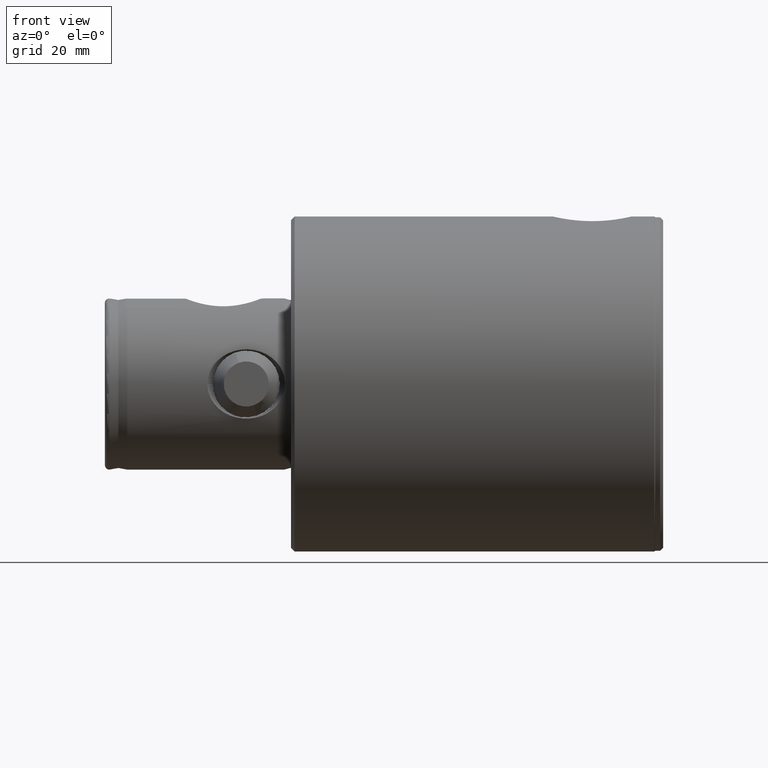
[diagram: clean part render]
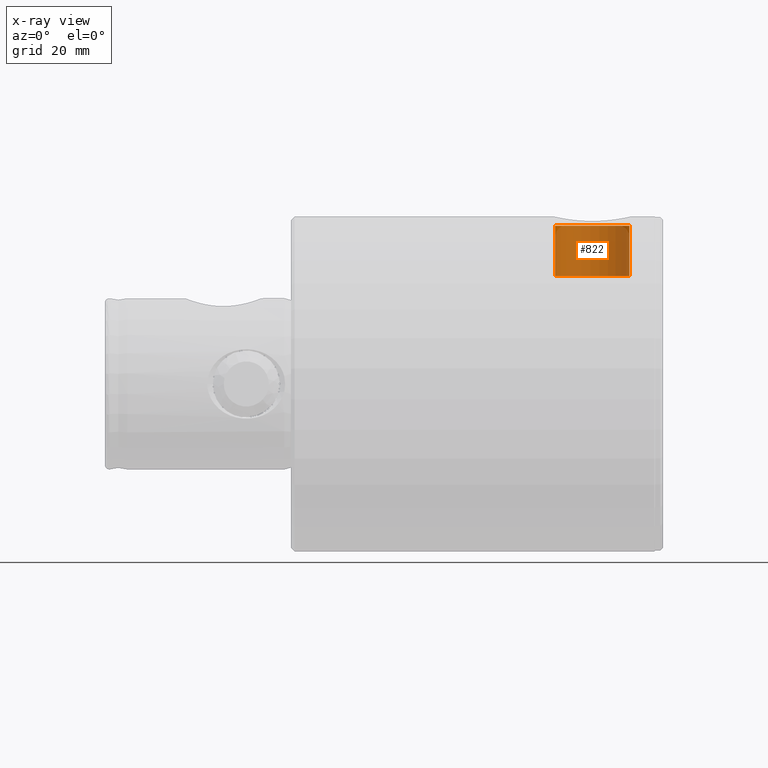
[diagram: x-ray — body ghosted, one internal face saturated and labeled with its STEP entity id]
A machine part, front view, then the same camera in x-ray: the body is ghosted and one INTERNAL B-rep face — a face not visible from any outside direction — is saturated and labeled: STEP entity #822.
In plain terms, the highlighted cylindrical surface (partial cylindrical patch) has radius 10 mm, axis along (0, 0, 1).
Its self-contained STEP definition (entity closure, byte-faithful):
#25 = AXIS2_PLACEMENT_3D ( 'NONE', #3621, #3001, #4039 ) ;
#216 = EDGE_CURVE ( 'NONE', #907, #775, #1763, .T. ) ;
#630 = CARTESIAN_POINT ( 'NONE',  ( 29.00000000000000000, 1.224646799147353100E-015, -10.00000000000000000 ) ) ;
#775 = VERTEX_POINT ( 'NONE', #5056 ) ;
#815 = DIRECTION ( 'NONE',  ( 1.000000000000000000, -0.0000000000000000000, -0.0000000000000000000 ) ) ;
#822 = ADVANCED_FACE ( 'NONE', ( #2659 ), #2600, .T. ) ;
#907 = VERTEX_POINT ( 'NONE', #2969 ) ;
#908 = ORIENTED_EDGE ( 'NONE', *, *, #4320, .F. ) ;
#1064 = EDGE_LOOP ( 'NONE', ( #1156, #3132, #2574, #908 ) ) ;
#1156 = ORIENTED_EDGE ( 'NONE', *, *, #3582, .T. ) ;
#1213 = CARTESIAN_POINT ( 'NONE',  ( 1.000000000000007800, 0.0000000000000000000, 0.0000000000000000000 ) ) ;
#1699 = AXIS2_PLACEMENT_3D ( 'NONE', #1213, #815, #5092 ) ;
#1763 = LINE ( 'NONE', #630, #1818 ) ;
#1782 = CIRCLE ( 'NONE', #1699, 10.00000000000000000 ) ;
#1818 = VECTOR ( 'NONE', #2607, 1000.000000000000000 ) ;
#2066 = VERTEX_POINT ( 'NONE', #2768 ) ;
#2320 = VECTOR ( 'NONE', #4721, 1000.000000000000000 ) ;
#2334 = CARTESIAN_POINT ( 'NONE',  ( 29.00000000000000000, 0.0000000000000000000, 10.00000000000000000 ) ) ;
#2463 = CIRCLE ( 'NONE', #4090, 10.00000000000000000 ) ;
#2574 = ORIENTED_EDGE ( 'NONE', *, *, #5030, .T. ) ;
#2600 = CYLINDRICAL_SURFACE ( 'NONE', #25, 10.00000000000000000 ) ;
#2607 = DIRECTION ( 'NONE',  ( -1.000000000000000000, -0.0000000000000000000, -0.0000000000000000000 ) ) ;
#2659 = FACE_OUTER_BOUND ( 'NONE', #1064, .T. ) ;
#2768 = CARTESIAN_POINT ( 'NONE',  ( 14.49999999999984700, 0.0000000000000000000, 10.00000000000000000 ) ) ;
#2840 = DIRECTION ( 'NONE',  ( -1.000000000000000000, 0.0000000000000000000, 0.0000000000000000000 ) ) ;
#2969 = CARTESIAN_POINT ( 'NONE',  ( 14.49999999999984700, 1.224646799147353100E-015, -10.00000000000000000 ) ) ;
#3001 = DIRECTION ( 'NONE',  ( -1.000000000000000000, -0.0000000000000000000, -0.0000000000000000000 ) ) ;
#3132 = ORIENTED_EDGE ( 'NONE', *, *, #216, .T. ) ;
#3565 = VERTEX_POINT ( 'NONE', #3601 ) ;
#3582 = EDGE_CURVE ( 'NONE', #2066, #907, #2463, .T. ) ;
#3601 = CARTESIAN_POINT ( 'NONE',  ( 1.000000000000007800, 0.0000000000000000000, 10.00000000000000000 ) ) ;
#3621 = CARTESIAN_POINT ( 'NONE',  ( 29.00000000000000000, 0.0000000000000000000, 0.0000000000000000000 ) ) ;
#4039 = DIRECTION ( 'NONE',  ( 0.0000000000000000000, 0.0000000000000000000, 1.000000000000000000 ) ) ;
#4090 = AXIS2_PLACEMENT_3D ( 'NONE', #4828, #2840, #4878 ) ;
#4320 = EDGE_CURVE ( 'NONE', #2066, #3565, #4469, .T. ) ;
#4469 = LINE ( 'NONE', #2334, #2320 ) ;
#4721 = DIRECTION ( 'NONE',  ( -1.000000000000000000, -0.0000000000000000000, -0.0000000000000000000 ) ) ;
#4828 = CARTESIAN_POINT ( 'NONE',  ( 14.49999999999984700, 0.0000000000000000000, 0.0000000000000000000 ) ) ;
#4878 = DIRECTION ( 'NONE',  ( 0.0000000000000000000, 0.0000000000000000000, -1.000000000000000000 ) ) ;
#5030 = EDGE_CURVE ( 'NONE', #775, #3565, #1782, .T. ) ;
#5056 = CARTESIAN_POINT ( 'NONE',  ( 1.000000000000007800, 1.224646799147353100E-015, -10.00000000000000000 ) ) ;
#5092 = DIRECTION ( 'NONE',  ( 0.0000000000000000000, 0.0000000000000000000, -1.000000000000000000 ) ) ;